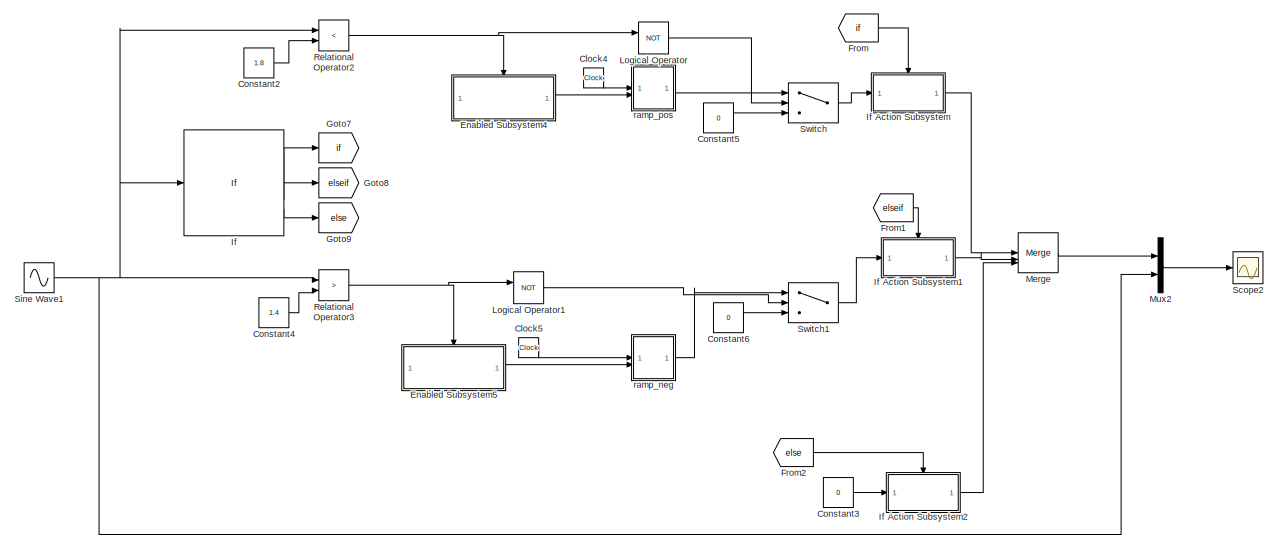
[diagram: root canvas - part 1/2, top right region]
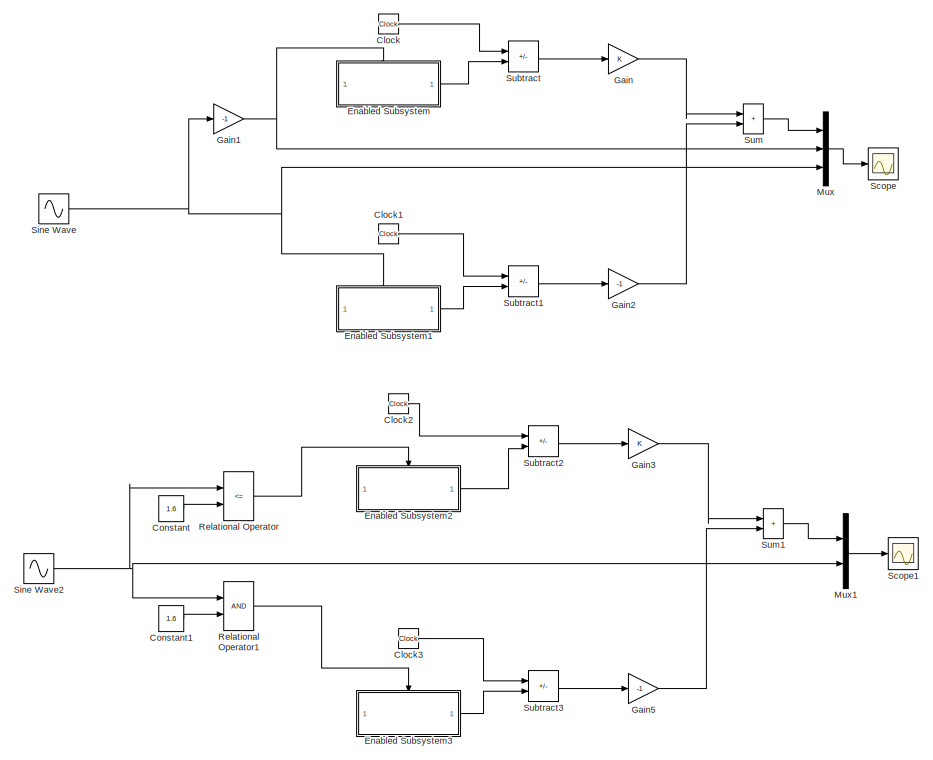
[diagram: root canvas - part 2/2, left side, full height]
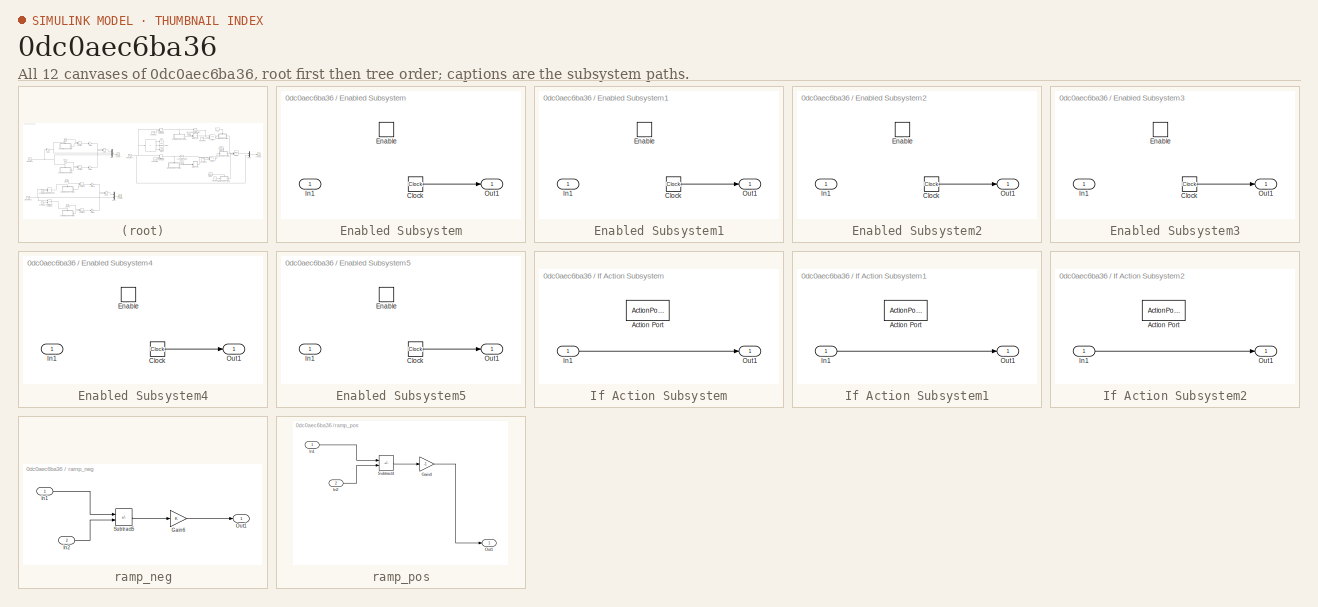
[diagram: thumbnail index - all 12 canvases of the model, root first then tree order]
MODEL slx_0dc0aec6ba36
KIND model
CONFIG AbsTol = auto
CONFIG EnableMultiTasking = off
CONFIG FixedStep = auto
CONFIG MaxStep = auto
CONFIG MinStep = auto
CONFIG RelTol = 1e-3
CONFIG SampleTimeConstraint = Unconstrained
CONFIG SolverName = VariableStepAuto
CONFIG StartTime = 0.0
CONFIG StopTime = 5
BLOCK [Clock] Clock
  Commented = on
BLOCK [Clock] Clock1
  Commented = on
BLOCK [Clock] Clock2
  Commented = on
BLOCK [Clock] Clock3
  Commented = on
BLOCK [Clock] Clock4
BLOCK [Clock] Clock5
BLOCK [Constant] Constant
  Commented = on
  Value = 1.6
BLOCK [Constant] Constant1
  Commented = on
  Value = 1.6
BLOCK [Constant] Constant2
  Value = 1.8
BLOCK [Constant] Constant3
  Value = 0
BLOCK [Constant] Constant4
  Value = 1.4
BLOCK [Constant] Constant5
  Value = 0
BLOCK [Constant] Constant6
  Value = 0
BLOCK [SubSystem] Enabled Subsystem
  Commented = on
  TreatAsAtomicUnit = on
BLOCK [Clock] Enabled Subsystem/Clock
BLOCK [EnablePort] Enabled Subsystem/Enable
BLOCK [Inport] Enabled Subsystem/In1
BLOCK [Outport] Enabled Subsystem/Out1
BLOCK [SubSystem] Enabled Subsystem1
  Commented = on
  TreatAsAtomicUnit = on
BLOCK [Clock] Enabled Subsystem1/Clock
BLOCK [EnablePort] Enabled Subsystem1/Enable
BLOCK [Inport] Enabled Subsystem1/In1
BLOCK [Outport] Enabled Subsystem1/Out1
BLOCK [SubSystem] Enabled Subsystem2
  Commented = on
  TreatAsAtomicUnit = on
BLOCK [Clock] Enabled Subsystem2/Clock
BLOCK [EnablePort] Enabled Subsystem2/Enable
BLOCK [Inport] Enabled Subsystem2/In1
BLOCK [Outport] Enabled Subsystem2/Out1
BLOCK [SubSystem] Enabled Subsystem3
  Commented = on
  TreatAsAtomicUnit = on
BLOCK [Clock] Enabled Subsystem3/Clock
BLOCK [EnablePort] Enabled Subsystem3/Enable
BLOCK [Inport] Enabled Subsystem3/In1
BLOCK [Outport] Enabled Subsystem3/Out1
BLOCK [SubSystem] Enabled Subsystem4
  TreatAsAtomicUnit = on
BLOCK [Clock] Enabled Subsystem4/Clock
BLOCK [EnablePort] Enabled Subsystem4/Enable
BLOCK [Inport] Enabled Subsystem4/In1
BLOCK [Outport] Enabled Subsystem4/Out1
BLOCK [SubSystem] Enabled Subsystem5
  TreatAsAtomicUnit = on
BLOCK [Clock] Enabled Subsystem5/Clock
BLOCK [EnablePort] Enabled Subsystem5/Enable
BLOCK [Inport] Enabled Subsystem5/In1
BLOCK [Outport] Enabled Subsystem5/Out1
BLOCK [From] From
  GotoTag = if
BLOCK [From] From1
  GotoTag = elseif
BLOCK [From] From2
  GotoTag = else
BLOCK [Gain] Gain
  Commented = on
BLOCK [Gain] Gain1
  Commented = on
  Gain = -1
BLOCK [Gain] Gain2
  Commented = on
  Gain = -1
BLOCK [Gain] Gain3
  Commented = on
BLOCK [Gain] Gain5
  Commented = on
  Gain = -1
BLOCK [Goto] Goto7
  GotoTag = if
BLOCK [Goto] Goto8
  GotoTag = elseif
BLOCK [Goto] Goto9
  GotoTag = else
BLOCK [If] If
  ElseIfExpressions = u1 < 1.4
  IfExpression = u1 > 1.8
BLOCK [SubSystem] If Action Subsystem
  TreatAsAtomicUnit = on
BLOCK [ActionPort] If Action Subsystem/Action Port
  ActionPortLabel = if(u1 > 1.8)
BLOCK [Inport] If Action Subsystem/In1
BLOCK [Outport] If Action Subsystem/Out1
BLOCK [SubSystem] If Action Subsystem1
  TreatAsAtomicUnit = on
BLOCK [ActionPort] If Action Subsystem1/Action Port
  ActionPortLabel = elseif(u1 < 1.4)
BLOCK [Inport] If Action Subsystem1/In1
BLOCK [Outport] If Action Subsystem1/Out1
BLOCK [SubSystem] If Action Subsystem2
  TreatAsAtomicUnit = on
BLOCK [ActionPort] If Action Subsystem2/Action Port
  ActionPortLabel = else
BLOCK [Inport] If Action Subsystem2/In1
BLOCK [Outport] If Action Subsystem2/Out1
BLOCK [Logic] Logical Operator
  AllPortsSameDT = off
  Operator = NOT
  OutDataTypeStr = boolean
BLOCK [Logic] Logical Operator1
  AllPortsSameDT = off
  Operator = NOT
  OutDataTypeStr = boolean
BLOCK [Merge] Merge
  Inputs = 3
BLOCK [Mux] Mux
  Commented = on
  DisplayOption = bar
  Inputs = 3
BLOCK [Mux] Mux1
  Commented = on
  DisplayOption = bar
  Inputs = 2
BLOCK [Mux] Mux2
  DisplayOption = bar
  Inputs = 2
BLOCK [RelationalOperator] Relational Operator
  Commented = on
  InputSameDT = off
  Operator = <=
  OutDataTypeStr = boolean
  RndMeth = Simplest
BLOCK [RelationalOperator] Relational Operator1
  Commented = on
  InputSameDT = off
  OutDataTypeStr = boolean
  RndMeth = Simplest
BLOCK [RelationalOperator] Relational Operator2
  InputSameDT = off
  Operator = <
  OutDataTypeStr = boolean
  RndMeth = Simplest
BLOCK [RelationalOperator] Relational Operator3
  InputSameDT = off
  Operator = >
  OutDataTypeStr = boolean
  RndMeth = Simplest
BLOCK [Scope] Scope
  Commented = on
  Floating = off
  NumInputPorts = 1
  ScopeSpecificationString = Simulink.scopes.TimeScopeBlockCfg('CurrentConfiguration', extmgr.ConfigurationSet(extmgr.Configuration('Core','General UI',true),extmgr.Configuration('Core','Source UI',true),extmgr.Configuration('Sources','WiredSimulink',true),extmgr.Configuration('Visuals','Time Domain',true,'SerializedDisplays',{struct('MinYLimReal','-3.92699','MaxYLimReal','3.92699','YLabelReal','','MinYLimMag','0.00000','MaxY...<+1373ch>
BLOCK [Scope] Scope1
  Commented = on
  Floating = off
  NumInputPorts = 1
  ScopeSpecificationString = Simulink.scopes.TimeScopeBlockCfg('CurrentConfiguration', extmgr.ConfigurationSet(extmgr.Configuration('Core','General UI',true),extmgr.Configuration('Core','Source UI',true),extmgr.Configuration('Sources','WiredSimulink',true,'DataLoggingVariableName','ScopeData1'),extmgr.Configuration('Visuals','Time Domain',true,'SerializedDisplays',{struct('MinYLimReal','-3.92699','MaxYLimReal','3.92699','YLab...<+1406ch>
BLOCK [Scope] Scope2
  Floating = off
  NumInputPorts = 1
  ScopeSpecificationString = Simulink.scopes.TimeScopeBlockCfg('CurrentConfiguration', extmgr.ConfigurationSet(extmgr.Configuration('Core','General UI',true),extmgr.Configuration('Core','Source UI',true),extmgr.Configuration('Sources','WiredSimulink',true,'DataLoggingVariableName','ScopeData2'),extmgr.Configuration('Visuals','Time Domain',true,'SerializedDisplays',{struct('MinYLimReal','-0.36521','MaxYLimReal','2.04748','YLab...<+1493ch>
BLOCK [Sin] Sine Wave
  Amplitude = 0.21
  Bias = 1.6
  Commented = on
  SampleTime = 0
BLOCK [Sin] Sine Wave1
  Amplitude = 0.21
  Bias = 1.6
  Frequency = 5
  SampleTime = 0
BLOCK [Sin] Sine Wave2
  Amplitude = 0.21
  Bias = 1.6
  Commented = on
  SampleTime = 0
BLOCK [Sum] Subtract
  Commented = on
  IconShape = rectangular
  Inputs = +-
BLOCK [Sum] Subtract1
  Commented = on
  IconShape = rectangular
  Inputs = +-
BLOCK [Sum] Subtract2
  Commented = on
  IconShape = rectangular
  Inputs = +-
BLOCK [Sum] Subtract3
  Commented = on
  IconShape = rectangular
  Inputs = +-
BLOCK [Sum] Sum
  Commented = on
  IconShape = rectangular
  Inputs = |++
BLOCK [Sum] Sum1
  Commented = on
  IconShape = rectangular
  Inputs = |++
BLOCK [Switch] Switch
  Criteria = u2 > Threshold
  InputSameDT = off
  SaturateOnIntegerOverflow = off
BLOCK [Switch] Switch1
  Criteria = u2 > Threshold
  InputSameDT = off
  SaturateOnIntegerOverflow = off
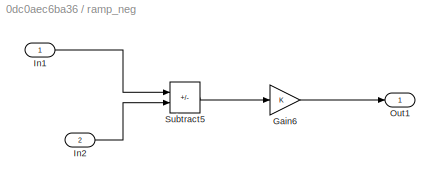
BLOCK [SubSystem] ramp_neg
BLOCK [Gain] ramp_neg/Gain6
BLOCK [Inport] ramp_neg/In1
BLOCK [Inport] ramp_neg/In2
  Port = 2
BLOCK [Outport] ramp_neg/Out1
BLOCK [Sum] ramp_neg/Subtract5
  IconShape = rectangular
  Inputs = +-
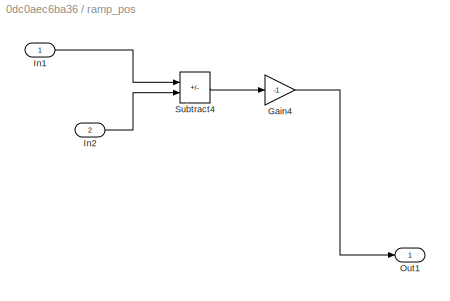
BLOCK [SubSystem] ramp_pos
BLOCK [Gain] ramp_pos/Gain4
  Gain = -1
BLOCK [Inport] ramp_pos/In1
BLOCK [Inport] ramp_pos/In2
  Port = 2
BLOCK [Outport] ramp_pos/Out1
BLOCK [Sum] ramp_pos/Subtract4
  IconShape = rectangular
  Inputs = +-
LINE Clock1:1 -> Subtract1:1
LINE Clock2:1 -> Subtract2:1
LINE Clock3:1 -> Subtract3:1
LINE Clock4:1 -> ramp_pos:1
LINE Clock5:1 -> ramp_neg:1
LINE Clock:1 -> Subtract:1
LINE Constant1:1 -> Relational Operator1:2
LINE Constant2:1 -> Relational Operator2:2
LINE Constant3:1 -> If Action Subsystem2:1
LINE Constant4:1 -> Relational Operator3:2
LINE Constant5:1 -> Switch:3
LINE Constant6:1 -> Switch1:3
LINE Constant:1 -> Relational Operator:2
LINE Enabled Subsystem/Clock:1 -> Enabled Subsystem/Out1:1
LINE Enabled Subsystem1/Clock:1 -> Enabled Subsystem1/Out1:1
LINE Enabled Subsystem1:1 -> Subtract1:2
LINE Enabled Subsystem2/Clock:1 -> Enabled Subsystem2/Out1:1
LINE Enabled Subsystem2:1 -> Subtract2:2
LINE Enabled Subsystem3/Clock:1 -> Enabled Subsystem3/Out1:1
LINE Enabled Subsystem3:1 -> Subtract3:2
LINE Enabled Subsystem4/Clock:1 -> Enabled Subsystem4/Out1:1
LINE Enabled Subsystem4:1 -> ramp_pos:2
LINE Enabled Subsystem5/Clock:1 -> Enabled Subsystem5/Out1:1
LINE Enabled Subsystem5:1 -> ramp_neg:2
LINE Enabled Subsystem:1 -> Subtract:2
LINE From1:1 -> If Action Subsystem1:ifaction
LINE From2:1 -> If Action Subsystem2:ifaction
LINE From:1 -> If Action Subsystem:ifaction
NET Gain1:1 -> Enabled Subsystem:enable, Mux:2
LINE Gain2:1 -> Sum:2
LINE Gain3:1 -> Sum1:1
LINE Gain5:1 -> Sum1:2
LINE Gain:1 -> Sum:1
LINE If Action Subsystem/In1:1 -> If Action Subsystem/Out1:1
LINE If Action Subsystem1/In1:1 -> If Action Subsystem1/Out1:1
LINE If Action Subsystem1:1 -> Merge:2
LINE If Action Subsystem2/In1:1 -> If Action Subsystem2/Out1:1
LINE If Action Subsystem2:1 -> Merge:3
LINE If Action Subsystem:1 -> Merge:1
LINE If:1 -> Goto7:1
LINE If:2 -> Goto8:1
LINE If:3 -> Goto9:1
LINE Logical Operator1:1 -> Switch1:2
LINE Logical Operator:1 -> Switch:2
LINE Merge:1 -> Mux2:1
LINE Mux1:1 -> Scope1:1
LINE Mux2:1 -> Scope2:1
LINE Mux:1 -> Scope:1
LINE Relational Operator1:1 -> Enabled Subsystem3:enable
NET Relational Operator2:1 -> Enabled Subsystem4:enable, Logical Operator:1
NET Relational Operator3:1 -> Enabled Subsystem5:enable, Logical Operator1:1
LINE Relational Operator:1 -> Enabled Subsystem2:enable
NET Sine Wave1:1 -> If:1, Mux2:2, Relational Operator2:1, Relational Operator3:1
NET Sine Wave2:1 -> Mux1:2, Relational Operator1:1, Relational Operator:1
NET Sine Wave:1 -> Enabled Subsystem1:enable, Gain1:1, Mux:3
LINE Subtract1:1 -> Gain2:1
LINE Subtract2:1 -> Gain3:1
LINE Subtract3:1 -> Gain5:1
LINE Subtract:1 -> Gain:1
LINE Sum1:1 -> Mux1:1
LINE Sum:1 -> Mux:1
LINE Switch1:1 -> If Action Subsystem1:1
LINE Switch:1 -> If Action Subsystem:1
LINE ramp_neg/Gain6:1 -> ramp_neg/Out1:1
LINE ramp_neg/In1:1 -> ramp_neg/Subtract5:1
LINE ramp_neg/In2:1 -> ramp_neg/Subtract5:2
LINE ramp_neg/Subtract5:1 -> ramp_neg/Gain6:1
LINE ramp_neg:1 -> Switch1:1
LINE ramp_pos/Gain4:1 -> ramp_pos/Out1:1
LINE ramp_pos/In1:1 -> ramp_pos/Subtract4:1
LINE ramp_pos/In2:1 -> ramp_pos/Subtract4:2
LINE ramp_pos/Subtract4:1 -> ramp_pos/Gain4:1
LINE ramp_pos:1 -> Switch:1
note: NET lines group one-source signal fan-out (src -> all destinations, sorted); 1:1 wires keep LINE
